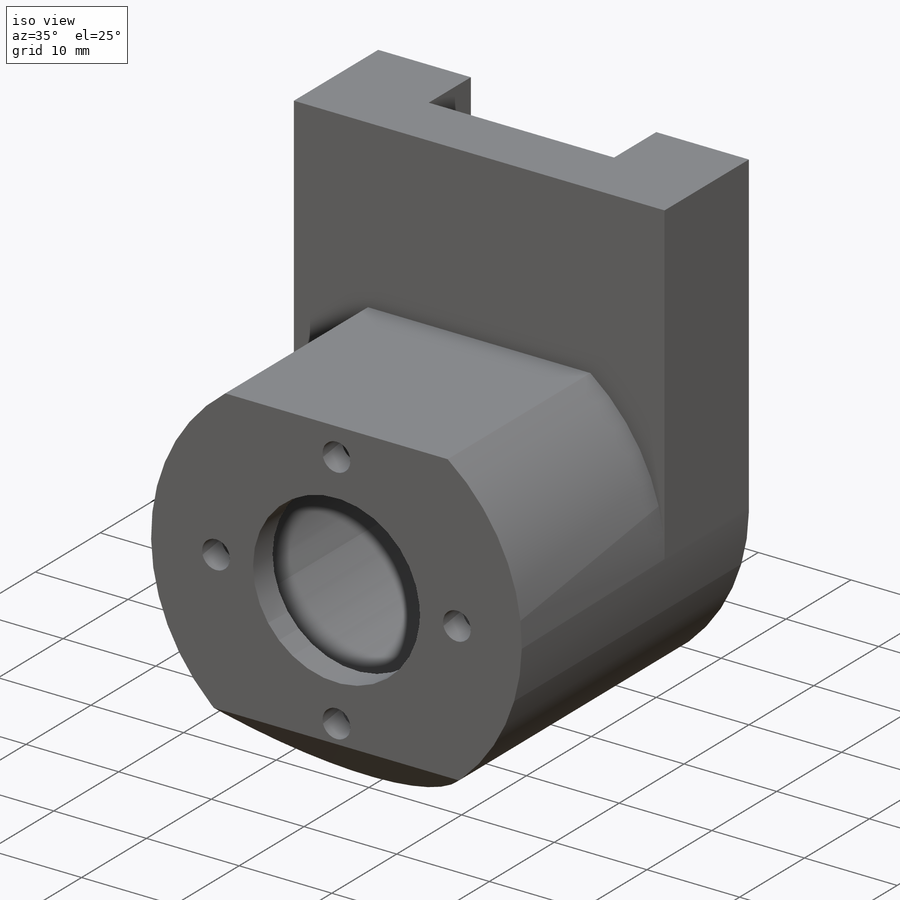
[diagram: iso view]
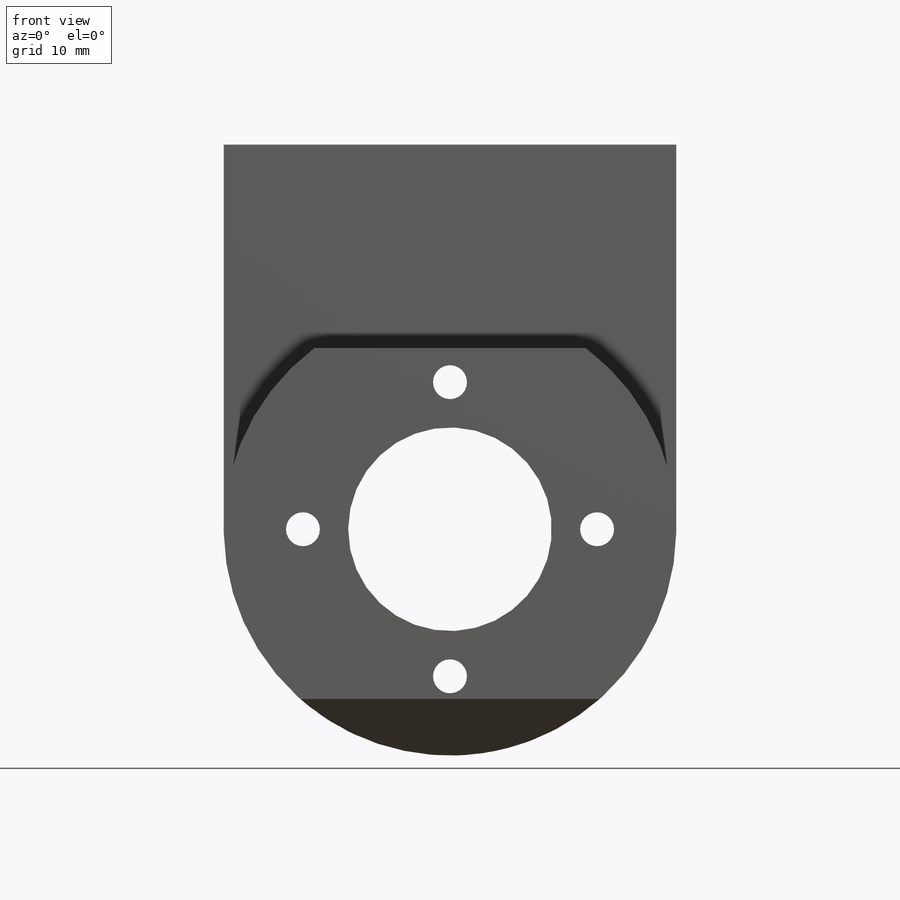
[diagram: front view]
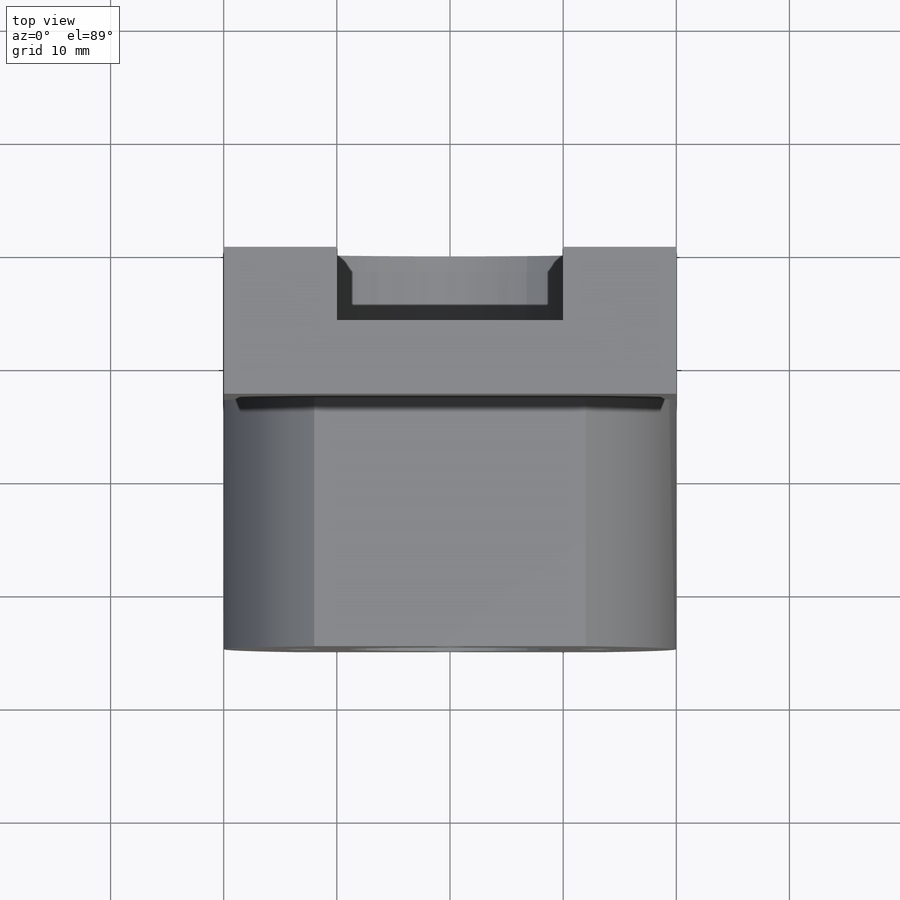
[diagram: top view]
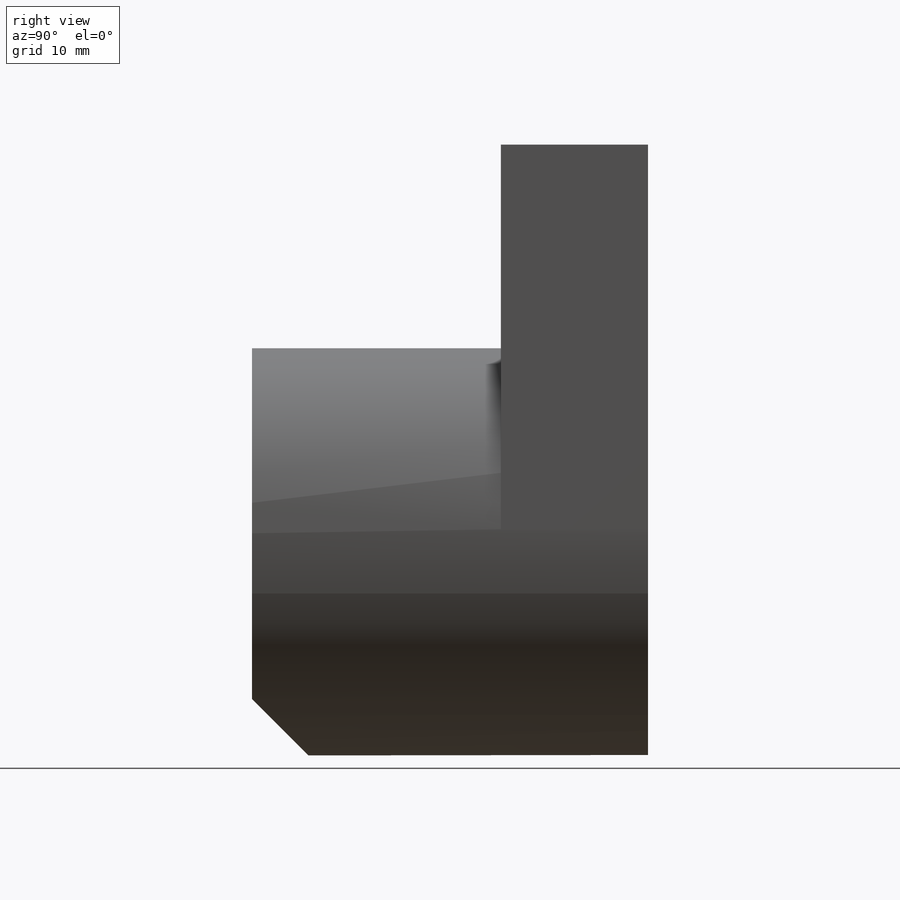
[diagram: right view]
SOLIDWORKS PART (.sldprt)
format: sldprt  version: not decoded by parser v0  size: 221,696 bytes
history: native  units: mm
features: sketch x7, cut_extrude x4, plane x3, extrude x3, material x1 (+11 scaffold rows collapsed)
feature tree (29):
  scaffold x11  (default folders/planes/origin — collapsed)
  material  "Matériau <non spécifié>"
  plane  "Plan de face"
  plane  "Plan de dessus"
  plane  "Plan de droite"
  sketch  "Esquisse1"  dims[D1=95.0mm]
  extrude  "Extrusion1"  Depth=5mm
  sketch  "Esquisse2"  dims[D1=~1.085549mm]
  extrude  "Extrusion2"  Depth=30mm
  sketch  "Esquisse3"
  cut_extrude  "Extrusion3"  Depth=27mm
  sketch  "Esquisse4"  dims[D1=5.0mm]
  cut_extrude  "Extrusion4"  [1 undecoded]
  sketch  "Esquisse5"
  cut_extrude  "Extrusion5"  Depth=10mm
  sketch  "Esquisse6"  dims[D1=0.0mm]
  extrude  "Extrusion6"  [1 undecoded]
  sketch  "Esquisse7"  dims[D1=20.0mm]
  cut_extrude  "Extrusion7"  [1 undecoded]
decode coverage: 9 of 14 modeling features carry decoded parameters
note: ~ marks probable driven/reference dimensions
note: 3 parameter values undecoded
summary: no parameter record found for 3 features
note: suppression state not decoded; provenance and decode notes live in map.json
